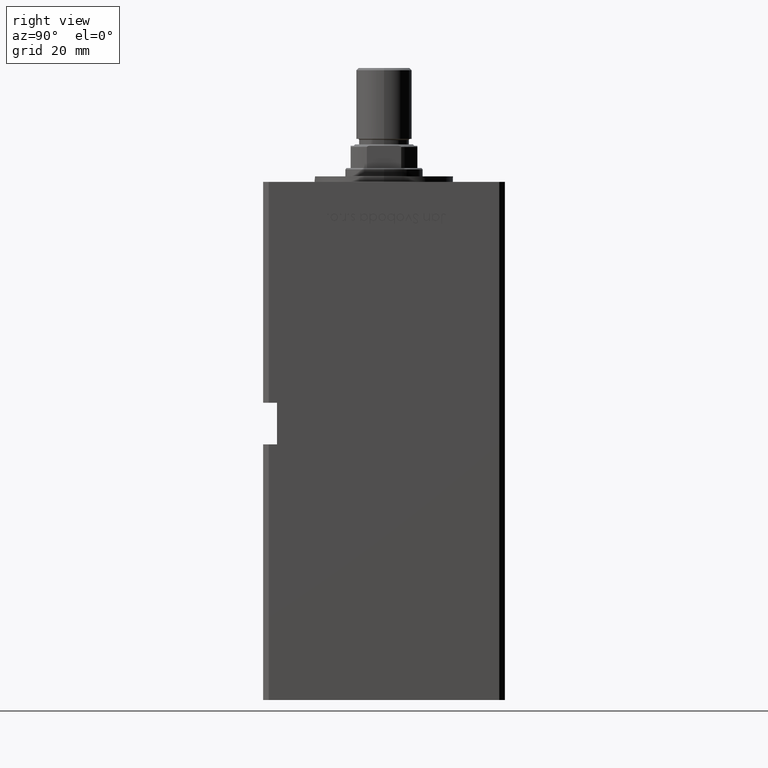
[diagram: clean part render]
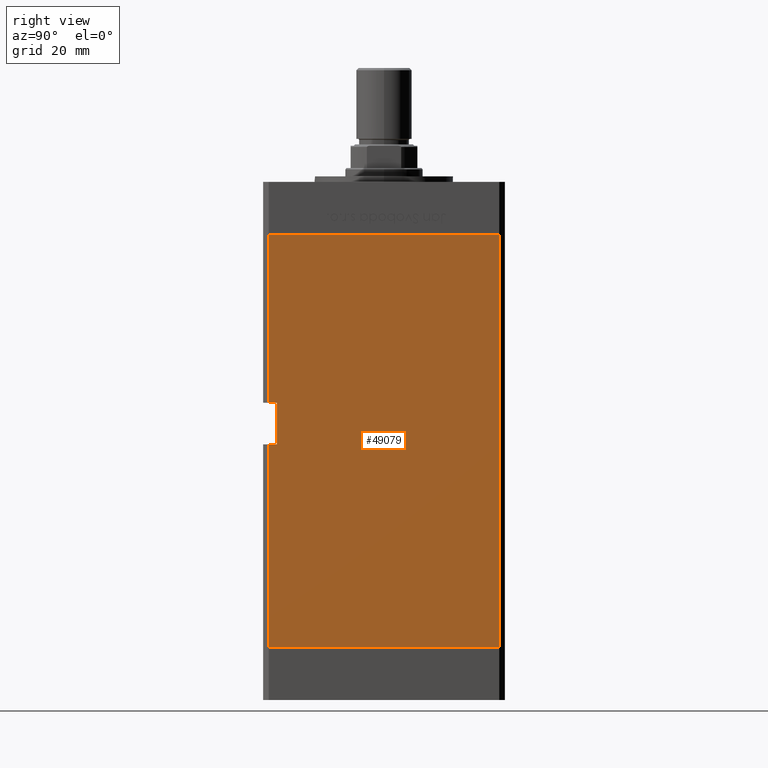
[diagram: same view with one face highlighted and labeled with its STEP entity id]
A machine part, right view. The second image highlights one B-rep face of the part: STEP entity #49079.
In plain terms, the highlighted planar face has unit normal (1, -0, 0).
Its self-contained STEP definition (entity closure, byte-faithful):
#733 = VECTOR ( 'NONE', #51458, 1000.000000000000000 ) ;
#1486 = LINE ( 'NONE', #30751, #50874 ) ;
#1977 = EDGE_LOOP ( 'NONE', ( #41123, #36147, #24303, #20326, #4858, #4167, #30410, #9772 ) ) ;
#2823 = DIRECTION ( 'NONE',  ( 3.344045254895050480E-16, 1.000000000000000000, 0.000000000000000000 ) ) ;
#2829 = VERTEX_POINT ( 'NONE', #14064 ) ;
#3988 = CARTESIAN_POINT ( 'NONE',  ( 50.00000000000001421, 41.49999999999999289, 148.5000000000000000 ) ) ;
#4167 = ORIENTED_EDGE ( 'NONE', *, *, #48722, .T. ) ;
#4858 = ORIENTED_EDGE ( 'NONE', *, *, #16728, .T. ) ;
#5949 = AXIS2_PLACEMENT_3D ( 'NONE', #18824, #7170, #2823 ) ;
#7170 = DIRECTION ( 'NONE',  ( 1.000000000000000000, -3.344045254895050480E-16, 0.000000000000000000 ) ) ;
#8838 = EDGE_CURVE ( 'NONE', #36613, #37702, #23795, .T. ) ;
#9772 = ORIENTED_EDGE ( 'NONE', *, *, #46310, .F. ) ;
#10822 = VERTEX_POINT ( 'NONE', #52815 ) ;
#10962 = FACE_OUTER_BOUND ( 'NONE', #1977, .T. ) ;
#12194 = DIRECTION ( 'NONE',  ( -0.000000000000000000, -1.000000000000000000, -0.000000000000000000 ) ) ;
#12906 = LINE ( 'NONE', #28369, #42117 ) ;
#13462 = CARTESIAN_POINT ( 'NONE',  ( 49.99999999999998579, -41.49999999999999289, 0.000000000000000000 ) ) ;
#14064 = CARTESIAN_POINT ( 'NONE',  ( 49.99999999999998579, -41.49999999999999289, 88.00000000000000000 ) ) ;
#15199 = VECTOR ( 'NONE', #22488, 1000.000000000000000 ) ;
#15207 = VECTOR ( 'NONE', #28517, 1000.000000000000000 ) ;
#15542 = VECTOR ( 'NONE', #12194, 1000.000000000000000 ) ;
#16043 = CARTESIAN_POINT ( 'NONE',  ( 49.99999999999998579, -38.50000000000000000, 73.00000000000000000 ) ) ;
#16728 = EDGE_CURVE ( 'NONE', #36613, #45838, #34936, .T. ) ;
#18824 = CARTESIAN_POINT ( 'NONE',  ( 50.00000000000001421, 41.49999999999999289, 148.5000000000000000 ) ) ;
#20326 = ORIENTED_EDGE ( 'NONE', *, *, #8838, .F. ) ;
#20754 = CARTESIAN_POINT ( 'NONE',  ( 49.99999999999998579, -41.49999999999999289, 73.00000000000000000 ) ) ;
#22488 = DIRECTION ( 'NONE',  ( -3.344045254895050973E-16, -1.000000000000000000, 0.000000000000000000 ) ) ;
#23644 = DIRECTION ( 'NONE',  ( -0.000000000000000000, -0.000000000000000000, 1.000000000000000000 ) ) ;
#23795 = LINE ( 'NONE', #3988, #37552 ) ;
#24303 = ORIENTED_EDGE ( 'NONE', *, *, #41554, .F. ) ;
#24369 = CARTESIAN_POINT ( 'NONE',  ( 49.99999999999998579, -38.50000000000000000, 88.00000000000000000 ) ) ;
#27068 = EDGE_CURVE ( 'NONE', #43718, #2829, #29240, .T. ) ;
#28369 = CARTESIAN_POINT ( 'NONE',  ( 49.99999999999998579, -41.49999999999999289, 148.5000000000000000 ) ) ;
#28413 = VECTOR ( 'NONE', #23644, 1000.000000000000000 ) ;
#28517 = DIRECTION ( 'NONE',  ( -0.000000000000000000, -1.000000000000000000, -0.000000000000000000 ) ) ;
#29240 = LINE ( 'NONE', #45490, #15542 ) ;
#29430 = DIRECTION ( 'NONE',  ( -0.000000000000000000, -0.000000000000000000, -1.000000000000000000 ) ) ;
#30410 = ORIENTED_EDGE ( 'NONE', *, *, #27068, .F. ) ;
#30620 = CARTESIAN_POINT ( 'NONE',  ( 50.00000000000001421, 41.49999999999999289, 148.5000000000000000 ) ) ;
#30751 = CARTESIAN_POINT ( 'NONE',  ( 50.00000000000001421, 41.49999999999999289, 0.000000000000000000 ) ) ;
#31282 = DIRECTION ( 'NONE',  ( -3.344045254895050973E-16, -1.000000000000000000, 0.000000000000000000 ) ) ;
#31437 = VERTEX_POINT ( 'NONE', #13462 ) ;
#34369 = CARTESIAN_POINT ( 'NONE',  ( 50.00000000000001421, 41.49999999999999289, 148.5000000000000000 ) ) ;
#34924 = CARTESIAN_POINT ( 'NONE',  ( 49.99999999999998579, -41.49999999999999289, 148.5000000000000000 ) ) ;
#34936 = LINE ( 'NONE', #30620, #15199 ) ;
#35556 = LINE ( 'NONE', #52098, #28413 ) ;
#36119 = EDGE_CURVE ( 'NONE', #10822, #51545, #53175, .T. ) ;
#36147 = ORIENTED_EDGE ( 'NONE', *, *, #39207, .T. ) ;
#36602 = CARTESIAN_POINT ( 'NONE',  ( 50.00000000000001421, 41.49999999999999289, 0.000000000000000000 ) ) ;
#36613 = VERTEX_POINT ( 'NONE', #34369 ) ;
#37552 = VECTOR ( 'NONE', #40307, 1000.000000000000000 ) ;
#37702 = VERTEX_POINT ( 'NONE', #36602 ) ;
#39207 = EDGE_CURVE ( 'NONE', #51545, #31437, #12906, .T. ) ;
#39269 = LINE ( 'NONE', #34924, #733 ) ;
#40307 = DIRECTION ( 'NONE',  ( -0.000000000000000000, -0.000000000000000000, -1.000000000000000000 ) ) ;
#41123 = ORIENTED_EDGE ( 'NONE', *, *, #36119, .T. ) ;
#41554 = EDGE_CURVE ( 'NONE', #37702, #31437, #1486, .T. ) ;
#42117 = VECTOR ( 'NONE', #29430, 1000.000000000000000 ) ;
#43197 = PLANE ( 'NONE',  #5949 ) ;
#43718 = VERTEX_POINT ( 'NONE', #24369 ) ;
#45490 = CARTESIAN_POINT ( 'NONE',  ( 49.99999999999998579, -38.50000000000000000, 88.00000000000000000 ) ) ;
#45838 = VERTEX_POINT ( 'NONE', #53101 ) ;
#46310 = EDGE_CURVE ( 'NONE', #10822, #43718, #35556, .T. ) ;
#48722 = EDGE_CURVE ( 'NONE', #45838, #2829, #39269, .T. ) ;
#49079 = ADVANCED_FACE ( 'NONE', ( #10962 ), #43197, .T. ) ;
#50874 = VECTOR ( 'NONE', #31282, 1000.000000000000000 ) ;
#51458 = DIRECTION ( 'NONE',  ( -0.000000000000000000, -0.000000000000000000, -1.000000000000000000 ) ) ;
#51545 = VERTEX_POINT ( 'NONE', #20754 ) ;
#52098 = CARTESIAN_POINT ( 'NONE',  ( 49.99999999999998579, -38.50000000000000000, 88.00000000000000000 ) ) ;
#52815 = CARTESIAN_POINT ( 'NONE',  ( 49.99999999999998579, -38.49999999999999289, 73.00000000000000000 ) ) ;
#53101 = CARTESIAN_POINT ( 'NONE',  ( 49.99999999999998579, -41.49999999999999289, 148.5000000000000000 ) ) ;
#53175 = LINE ( 'NONE', #16043, #15207 ) ;